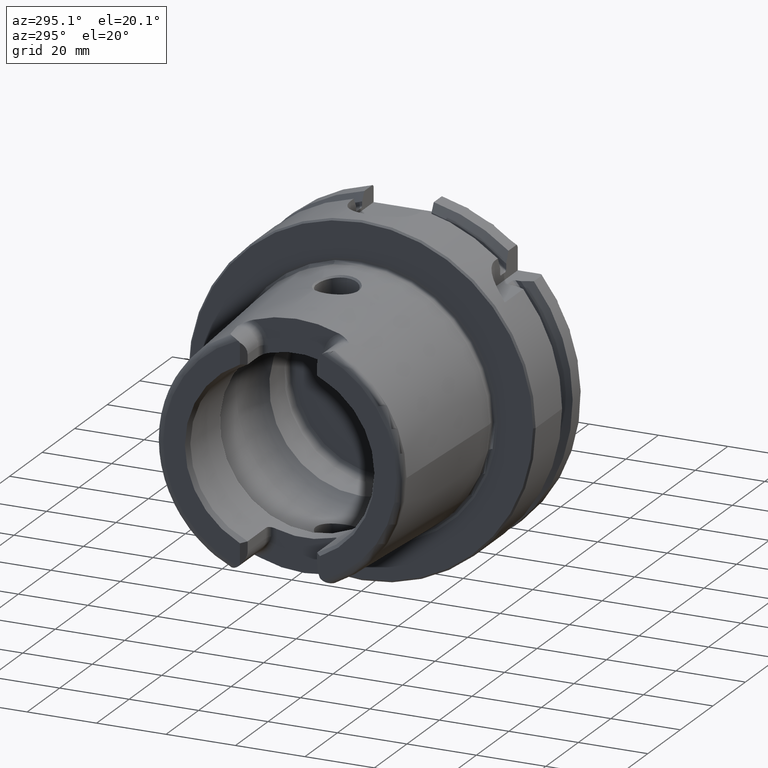
[diagram: clean part render]
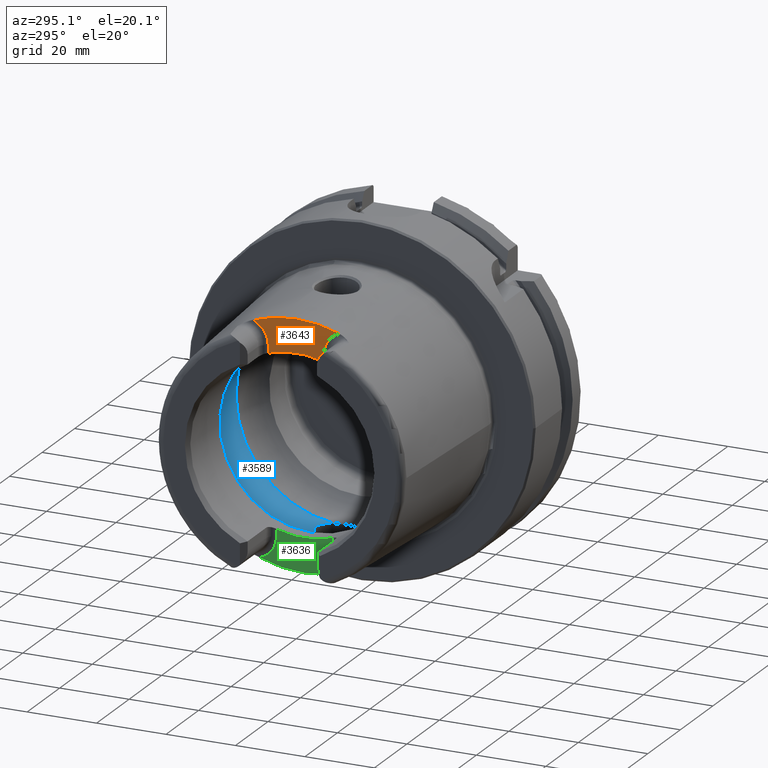
[diagram: same view with three faces highlighted in distinct colors, each labeled with its STEP entity id]
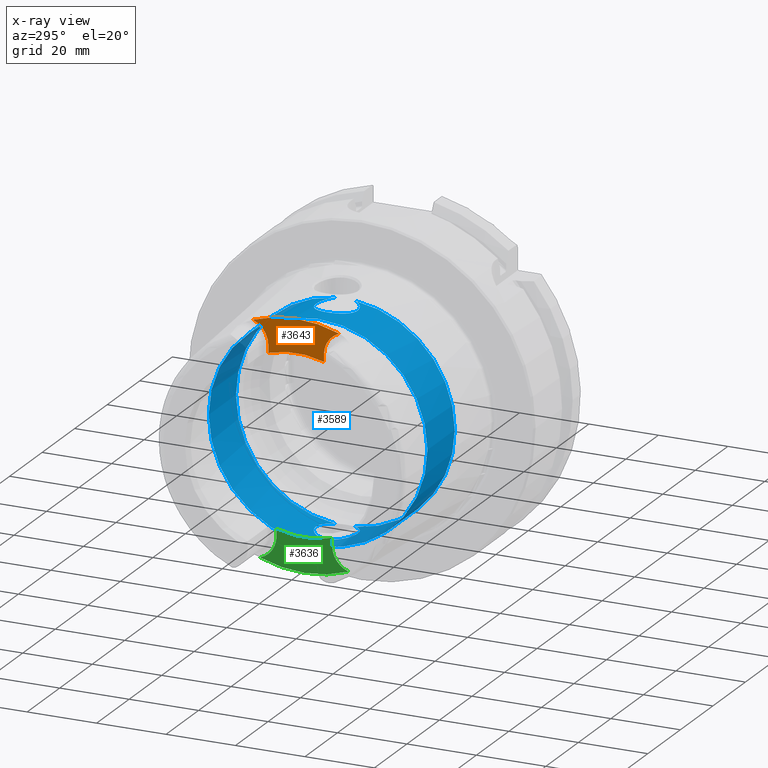
[diagram: x-ray of the same camera — body ghosted, the three highlighted faces saturated]
A machine part, auxiliary view with three faces highlighted in distinct colors.
The next image is the same camera in x-ray (body ghosted, the three faces saturated) — at least one of them is partly hidden behind the body in this view.
Their STEP definitions:

[orange] entity #3643 — the highlighted planar face has unit normal (-1, 0, 0).
#733=PLANE('',#4099);
#924=FACE_OUTER_BOUND('',#1118,.T.);
#1118=EDGE_LOOP('',(#3126,#3127,#3128,#3129,#3130,#3131));
#1318=LINE('',#6852,#1508);
#1319=LINE('',#6881,#1509);
#1508=VECTOR('',#4830,10.);
#1509=VECTOR('',#4843,10.);
#1639=CIRCLE('',#3986,36.003493987976);
#1682=CIRCLE('',#4072,6.88);
#1684=CIRCLE('',#4075,6.88);
#1696=CIRCLE('',#4100,26.5);
#1914=VERTEX_POINT('',#6030);
#1915=VERTEX_POINT('',#6047);
#2006=VERTEX_POINT('',#6849);
#2007=VERTEX_POINT('',#6851);
#2008=VERTEX_POINT('',#6866);
#2009=VERTEX_POINT('',#6870);
#2255=EDGE_CURVE('',#1914,#1915,#1639,.T.);
#2393=EDGE_CURVE('',#2006,#2007,#1318,.T.);
#2395=EDGE_CURVE('',#1915,#2006,#1682,.T.);
#2397=EDGE_CURVE('',#2008,#1914,#1684,.T.);
#2399=EDGE_CURVE('',#2009,#2008,#1319,.T.);
#2420=EDGE_CURVE('',#2007,#2009,#1696,.T.);
#3126=ORIENTED_EDGE('',*,*,#2395,.F.);
#3127=ORIENTED_EDGE('',*,*,#2255,.F.);
#3128=ORIENTED_EDGE('',*,*,#2397,.F.);
#3129=ORIENTED_EDGE('',*,*,#2399,.F.);
#3130=ORIENTED_EDGE('',*,*,#2420,.F.);
#3131=ORIENTED_EDGE('',*,*,#2393,.F.);
#3643=ADVANCED_FACE('',(#924),#733,.T.);
#3986=AXIS2_PLACEMENT_3D('',#6048,#4611,#4612);
#4072=AXIS2_PLACEMENT_3D('',#6864,#4833,#4834);
#4075=AXIS2_PLACEMENT_3D('',#6868,#4839,#4840);
#4099=AXIS2_PLACEMENT_3D('',#6939,#4895,#4896);
#4100=AXIS2_PLACEMENT_3D('',#6940,#4897,#4898);
#4611=DIRECTION('center_axis',(1.,0.,0.));
#4612=DIRECTION('ref_axis',(0.,1.,0.));
#4830=DIRECTION('',(0.,0.,-1.));
#4833=DIRECTION('center_axis',(-1.,0.,0.));
#4834=DIRECTION('ref_axis',(0.,0.564947834751706,0.82512662301574));
#4839=DIRECTION('center_axis',(-1.,0.,0.));
#4840=DIRECTION('ref_axis',(0.,-0.564947834751705,0.825126623015741));
#4843=DIRECTION('',(0.,0.,1.));
#4895=DIRECTION('center_axis',(-1.,0.,0.));
#4896=DIRECTION('ref_axis',(0.,0.,1.));
#4897=DIRECTION('center_axis',(-1.,0.,0.));
#4898=DIRECTION('ref_axis',(0.,1.,0.));
#6030=CARTESIAN_POINT('',(-40.,12.4227760464511,33.7923987701664));
#6047=CARTESIAN_POINT('',(-40.,-12.4227760464511,33.7923987701664));
#6048=CARTESIAN_POINT('Origin',(-40.,0.,0.));
#6849=CARTESIAN_POINT('',(-40.,-8.01,27.37));
#6851=CARTESIAN_POINT('',(-40.,-8.01,25.2604414054862));
#6852=CARTESIAN_POINT('',(-40.,-8.01,23.5));
#6864=CARTESIAN_POINT('Origin',(-40.,-14.89,27.37));
#6866=CARTESIAN_POINT('',(-40.,8.01,27.37));
#6868=CARTESIAN_POINT('Origin',(-40.,14.89,27.37));
#6870=CARTESIAN_POINT('',(-40.,8.01,25.2604414054862));
#6881=CARTESIAN_POINT('',(-40.,8.01,28.185));
#6939=CARTESIAN_POINT('Origin',(-40.,0.,29.));
#6940=CARTESIAN_POINT('Origin',(-40.,0.,0.));

[blue] entity #3589 — the highlighted cylindrical surface (bore or boss wall) has radius 31.5 mm, axis along (-1, 0, 0).
#592=B_SPLINE_CURVE_WITH_KNOTS('',3,(#6106,#6107,#6108,#6109,#6110,#6111,
#6112,#6113,#6114,#6115,#6116,#6117,#6118,#6119,#6120,#6121,#6122,#6123,
#6124,#6125,#6126,#6127,#6128,#6129,#6130,#6131,#6132,#6133,#6134,#6135,
#6136),.UNSPECIFIED.,.F.,.F.,(4,2,2,2,2,2,2,2,2,2,2,3,2,2,4),(-2.42966289251045,
-2.26609494287567,-2.03948128472637,-1.81286762657707,-1.58625396842777,
-1.35964031027847,-1.1330370617835,-0.906433813288535,-0.679830564793567,
-0.453227316298599,-0.226613658149299,0.,0.2266136581493,0.453227316298599,
0.616795265988555),.UNSPECIFIED.);
#597=B_SPLINE_CURVE_WITH_KNOTS('',3,(#6298,#6299,#6300,#6301,#6302,#6303,
#6304,#6305,#6306,#6307,#6308,#6309,#6310,#6311,#6312,#6313,#6314,#6315,
#6316,#6317,#6318,#6319,#6320,#6321,#6322,#6323,#6324,#6325,#6326,#6327,
#6328),.UNSPECIFIED.,.F.,.F.,(4,2,2,3,2,2,2,2,2,2,2,2,2,2,4),(-0.616795265933374,
-0.453227316298598,-0.226613658149299,0.,0.2266136581493,0.453227316298599,
0.679830564793567,0.906433813288535,1.1330370617835,1.35964031027847,1.58625396842777,
1.81286762657707,2.03948128472637,2.26609494287567,2.42966289256562),
 .UNSPECIFIED.);
#785=CYLINDRICAL_SURFACE('',#3990,31.5);
#870=FACE_OUTER_BOUND('',#1063,.T.);
#1063=EDGE_LOOP('',(#2828,#2829,#2830,#2831,#2832,#2833,#2834,#2835,#2836));
#1272=LINE('',#6344,#1462);
#1462=VECTOR('',#4626,31.5);
#1641=CIRCLE('',#3991,31.5);
#1642=CIRCLE('',#3992,31.5);
#1643=CIRCLE('',#3993,31.5);
#1644=CIRCLE('',#3994,31.5);
#1645=CIRCLE('',#3995,31.5);
#1918=VERTEX_POINT('',#6094);
#1919=VERTEX_POINT('',#6105);
#1922=VERTEX_POINT('',#6285);
#1924=VERTEX_POINT('',#6297);
#1925=VERTEX_POINT('',#6341);
#1926=VERTEX_POINT('',#6343);
#1927=VERTEX_POINT('',#6345);
#2261=EDGE_CURVE('',#1919,#1918,#592,.T.);
#2267=EDGE_CURVE('',#1924,#1922,#597,.T.);
#2270=EDGE_CURVE('',#1925,#1922,#1641,.T.);
#2271=EDGE_CURVE('',#1925,#1926,#1272,.T.);
#2272=EDGE_CURVE('',#1926,#1927,#1642,.T.);
#2273=EDGE_CURVE('',#1927,#1926,#1643,.T.);
#2274=EDGE_CURVE('',#1919,#1925,#1644,.T.);
#2275=EDGE_CURVE('',#1924,#1918,#1645,.T.);
#2828=ORIENTED_EDGE('',*,*,#2267,.T.);
#2829=ORIENTED_EDGE('',*,*,#2270,.F.);
#2830=ORIENTED_EDGE('',*,*,#2271,.T.);
#2831=ORIENTED_EDGE('',*,*,#2272,.T.);
#2832=ORIENTED_EDGE('',*,*,#2273,.T.);
#2833=ORIENTED_EDGE('',*,*,#2271,.F.);
#2834=ORIENTED_EDGE('',*,*,#2274,.F.);
#2835=ORIENTED_EDGE('',*,*,#2261,.T.);
#2836=ORIENTED_EDGE('',*,*,#2275,.F.);
#3589=ADVANCED_FACE('',(#870),#785,.F.);
#3990=AXIS2_PLACEMENT_3D('',#6340,#4622,#4623);
#3991=AXIS2_PLACEMENT_3D('',#6342,#4624,#4625);
#3992=AXIS2_PLACEMENT_3D('',#6346,#4627,#4628);
#3993=AXIS2_PLACEMENT_3D('',#6347,#4629,#4630);
#3994=AXIS2_PLACEMENT_3D('',#6348,#4631,#4632);
#3995=AXIS2_PLACEMENT_3D('',#6349,#4633,#4634);
#4622=DIRECTION('center_axis',(-1.,0.,0.));
#4623=DIRECTION('ref_axis',(0.,1.,0.));
#4624=DIRECTION('center_axis',(-1.,0.,0.));
#4625=DIRECTION('ref_axis',(0.,0.,1.));
#4626=DIRECTION('',(-1.,0.,0.));
#4627=DIRECTION('center_axis',(-1.,0.,0.));
#4628=DIRECTION('ref_axis',(0.,0.,1.));
#4629=DIRECTION('center_axis',(-1.,0.,0.));
#4630=DIRECTION('ref_axis',(0.,0.,1.));
#4631=DIRECTION('center_axis',(-1.,0.,0.));
#4632=DIRECTION('ref_axis',(0.,0.,1.));
#4633=DIRECTION('center_axis',(-1.,0.,0.));
#4634=DIRECTION('ref_axis',(0.,0.,1.));
#6094=CARTESIAN_POINT('',(-9.74679434480896,2.89893607109041,-31.3663222207471));
#6105=CARTESIAN_POINT('',(-9.74679434480896,-2.89893607109041,-31.3663222207471));
#6106=CARTESIAN_POINT('Ctrl Pts',(-9.74679434480898,-2.8989360710904,-31.3663222207471));
#6107=CARTESIAN_POINT('Ctrl Pts',(-10.0245557799842,-3.40227174537722,-31.3198029657389));
#6108=CARTESIAN_POINT('Ctrl Pts',(-10.3735944692601,-3.85887584349869,-31.2651415110221));
#6109=CARTESIAN_POINT('Ctrl Pts',(-11.289042660848,-4.77432403508655,-31.140708727458));
#6110=CARTESIAN_POINT('Ctrl Pts',(-11.9624834305428,-5.23577180141274,-31.0633803744766));
#6111=CARTESIAN_POINT('Ctrl Pts',(-13.4401908644727,-5.84865855662958,-30.9538382316308));
#6112=CARTESIAN_POINT('Ctrl Pts',(-14.2446211395023,-6.00000000000001,-30.9232921921325));
#6113=CARTESIAN_POINT('Ctrl Pts',(-15.7553788604977,-6.00000000000001,-30.9232921921325));
#6114=CARTESIAN_POINT('Ctrl Pts',(-16.5598091355273,-5.84865855662958,-30.9538382316308));
#6115=CARTESIAN_POINT('Ctrl Pts',(-18.0375165694572,-5.23577180141275,-31.0633803744766));
#6116=CARTESIAN_POINT('Ctrl Pts',(-18.710957339152,-4.77432403508655,-31.140708727458));
#6117=CARTESIAN_POINT('Ctrl Pts',(-19.7742996118461,-3.71098176239249,-31.2852440928545));
#6118=CARTESIAN_POINT('Ctrl Pts',(-20.2357665181958,-3.03753058698362,-31.3619556484746));
#6119=CARTESIAN_POINT('Ctrl Pts',(-20.8486671603361,-1.55978711209124,-31.4700797313679));
#6120=CARTESIAN_POINT('Ctrl Pts',(-21.,-0.755344161649895,-31.5));
#6121=CARTESIAN_POINT('Ctrl Pts',(-21.,0.755344161649892,-31.5));
#6122=CARTESIAN_POINT('Ctrl Pts',(-20.8486671603361,1.55978711209124,-31.4700797313679));
#6123=CARTESIAN_POINT('Ctrl Pts',(-20.2357665181958,3.03753058698362,-31.3619556484746));
#6124=CARTESIAN_POINT('Ctrl Pts',(-19.7742996118461,3.71098176239249,-31.2852440928545));
#6125=CARTESIAN_POINT('Ctrl Pts',(-18.710957339152,4.77432403508655,-31.140708727458));
#6126=CARTESIAN_POINT('Ctrl Pts',(-18.0375165694572,5.23577180141274,-31.0633803744766));
#6127=CARTESIAN_POINT('Ctrl Pts',(-16.5598091355273,5.84865855662958,-30.9538382316308));
#6128=CARTESIAN_POINT('Ctrl Pts',(-15.7553788604977,6.00000000000001,-30.9232921921325));
#6129=CARTESIAN_POINT('Ctrl Pts',(-15.,6.00000000000001,-30.9232921921325));
#6130=CARTESIAN_POINT('Ctrl Pts',(-14.2446211395023,6.00000000000001,-30.9232921921325));
#6131=CARTESIAN_POINT('Ctrl Pts',(-13.4401908644727,5.84865855662958,-30.9538382316308));
#6132=CARTESIAN_POINT('Ctrl Pts',(-11.9624834305428,5.23577180141274,-31.0633803744766));
#6133=CARTESIAN_POINT('Ctrl Pts',(-11.289042660848,4.77432403508655,-31.140708727458));
#6134=CARTESIAN_POINT('Ctrl Pts',(-10.3735944691306,3.85887584336922,-31.2651415110397));
#6135=CARTESIAN_POINT('Ctrl Pts',(-10.0245557801354,3.40227174565105,-31.3198029657135));
#6136=CARTESIAN_POINT('Ctrl Pts',(-9.74679434480898,2.8989360710904,-31.3663222207471));
#6285=CARTESIAN_POINT('',(-9.74679434480896,-2.89893607109042,31.3663222207471));
#6297=CARTESIAN_POINT('',(-9.74679434480896,2.89893607109042,31.3663222207471));
#6298=CARTESIAN_POINT('Ctrl Pts',(-9.74679434480897,2.89893607109041,31.3663222207471));
#6299=CARTESIAN_POINT('Ctrl Pts',(-10.0245557799842,3.40227174537723,31.3198029657389));
#6300=CARTESIAN_POINT('Ctrl Pts',(-10.3735944692601,3.85887584349869,31.2651415110221));
#6301=CARTESIAN_POINT('Ctrl Pts',(-11.289042660848,4.77432403508655,31.140708727458));
#6302=CARTESIAN_POINT('Ctrl Pts',(-11.9624834305428,5.23577180141274,31.0633803744766));
#6303=CARTESIAN_POINT('Ctrl Pts',(-13.4401908644727,5.84865855662958,30.9538382316308));
#6304=CARTESIAN_POINT('Ctrl Pts',(-14.2446211395023,6.00000000000001,30.9232921921325));
#6305=CARTESIAN_POINT('Ctrl Pts',(-15.,6.00000000000001,30.9232921921325));
#6306=CARTESIAN_POINT('Ctrl Pts',(-15.7553788604977,6.00000000000001,30.9232921921325));
#6307=CARTESIAN_POINT('Ctrl Pts',(-16.5598091355273,5.84865855662958,30.9538382316308));
#6308=CARTESIAN_POINT('Ctrl Pts',(-18.0375165694572,5.23577180141274,31.0633803744766));
#6309=CARTESIAN_POINT('Ctrl Pts',(-18.710957339152,4.77432403508655,31.140708727458));
#6310=CARTESIAN_POINT('Ctrl Pts',(-19.7742996118461,3.71098176239249,31.2852440928545));
#6311=CARTESIAN_POINT('Ctrl Pts',(-20.2357665181958,3.03753058698362,31.3619556484746));
#6312=CARTESIAN_POINT('Ctrl Pts',(-20.8486671603361,1.55978711209124,31.4700797313679));
#6313=CARTESIAN_POINT('Ctrl Pts',(-21.,0.755344161649892,31.5));
#6314=CARTESIAN_POINT('Ctrl Pts',(-21.,-0.755344161649894,31.5));
#6315=CARTESIAN_POINT('Ctrl Pts',(-20.8486671603361,-1.55978711209124,31.4700797313679));
#6316=CARTESIAN_POINT('Ctrl Pts',(-20.2357665181958,-3.03753058698362,31.3619556484746));
#6317=CARTESIAN_POINT('Ctrl Pts',(-19.7742996118461,-3.71098176239249,31.2852440928545));
#6318=CARTESIAN_POINT('Ctrl Pts',(-18.710957339152,-4.77432403508655,31.140708727458));
#6319=CARTESIAN_POINT('Ctrl Pts',(-18.0375165694572,-5.23577180141274,31.0633803744766));
#6320=CARTESIAN_POINT('Ctrl Pts',(-16.5598091355273,-5.84865855662958,30.9538382316308));
#6321=CARTESIAN_POINT('Ctrl Pts',(-15.7553788604977,-6.00000000000001,30.9232921921325));
#6322=CARTESIAN_POINT('Ctrl Pts',(-14.2446211395023,-6.00000000000001,30.9232921921325));
#6323=CARTESIAN_POINT('Ctrl Pts',(-13.4401908644727,-5.84865855662958,30.9538382316308));
#6324=CARTESIAN_POINT('Ctrl Pts',(-11.9624834305428,-5.23577180141274,31.0633803744766));
#6325=CARTESIAN_POINT('Ctrl Pts',(-11.289042660848,-4.77432403508655,31.140708727458));
#6326=CARTESIAN_POINT('Ctrl Pts',(-10.3735944691306,-3.85887584336922,31.2651415110397));
#6327=CARTESIAN_POINT('Ctrl Pts',(-10.0245557801353,-3.40227174565106,31.3198029657135));
#6328=CARTESIAN_POINT('Ctrl Pts',(-9.74679434480897,-2.89893607109041,31.3663222207471));
#6340=CARTESIAN_POINT('Origin',(-18.1430342013226,0.,0.));
#6341=CARTESIAN_POINT('',(-9.74679434480896,-31.5,3.85763741731416E-15));
#6342=CARTESIAN_POINT('Origin',(-9.74679434480896,0.,0.));
#6343=CARTESIAN_POINT('',(-26.5392740578363,-31.5,3.85763741731416E-15));
#6344=CARTESIAN_POINT('',(-18.1430342013226,-31.5,3.85763741731416E-15));
#6345=CARTESIAN_POINT('',(-26.5392740578363,-3.85763741731416E-15,-31.5));
#6346=CARTESIAN_POINT('Origin',(-26.5392740578363,0.,0.));
#6347=CARTESIAN_POINT('Origin',(-26.5392740578363,0.,0.));
#6348=CARTESIAN_POINT('Origin',(-9.74679434480896,0.,0.));
#6349=CARTESIAN_POINT('Origin',(-9.74679434480896,0.,0.));

[green] entity #3636 — the highlighted planar face has unit normal (-1, 0, 0).
#730=PLANE('',#4087);
#917=FACE_OUTER_BOUND('',#1111,.T.);
#1111=EDGE_LOOP('',(#3098,#3099,#3100,#3101,#3102,#3103));
#1320=LINE('',#6903,#1510);
#1323=LINE('',#6915,#1513);
#1510=VECTOR('',#4856,10.);
#1513=VECTOR('',#4871,10.);
#1637=CIRCLE('',#3984,36.25399498998);
#1688=CIRCLE('',#4081,6.88);
#1691=CIRCLE('',#4088,26.5);
#1692=CIRCLE('',#4089,6.88);
#1910=VERTEX_POINT('',#5979);
#1911=VERTEX_POINT('',#5990);
#2012=VERTEX_POINT('',#6887);
#2014=VERTEX_POINT('',#6892);
#2016=VERTEX_POINT('',#6912);
#2017=VERTEX_POINT('',#6914);
#2249=EDGE_CURVE('',#1910,#1911,#1637,.T.);
#2403=EDGE_CURVE('',#2012,#1910,#1688,.T.);
#2405=EDGE_CURVE('',#2014,#2012,#1320,.T.);
#2410=EDGE_CURVE('',#2016,#2014,#1691,.T.);
#2411=EDGE_CURVE('',#2017,#2016,#1323,.T.);
#2412=EDGE_CURVE('',#1911,#2017,#1692,.T.);
#3098=ORIENTED_EDGE('',*,*,#2403,.F.);
#3099=ORIENTED_EDGE('',*,*,#2405,.F.);
#3100=ORIENTED_EDGE('',*,*,#2410,.F.);
#3101=ORIENTED_EDGE('',*,*,#2411,.F.);
#3102=ORIENTED_EDGE('',*,*,#2412,.F.);
#3103=ORIENTED_EDGE('',*,*,#2249,.F.);
#3636=ADVANCED_FACE('',(#917),#730,.T.);
#3984=AXIS2_PLACEMENT_3D('',#5991,#4607,#4608);
#4081=AXIS2_PLACEMENT_3D('',#6889,#4852,#4853);
#4087=AXIS2_PLACEMENT_3D('',#6911,#4867,#4868);
#4088=AXIS2_PLACEMENT_3D('',#6913,#4869,#4870);
#4089=AXIS2_PLACEMENT_3D('',#6916,#4872,#4873);
#4607=DIRECTION('center_axis',(1.,0.,0.));
#4608=DIRECTION('ref_axis',(0.,1.,0.));
#4852=DIRECTION('center_axis',(-1.,0.,0.));
#4853=DIRECTION('ref_axis',(0.,0.510937901715381,-0.8596176246394));
#4856=DIRECTION('',(0.,0.,-1.));
#4867=DIRECTION('center_axis',(-1.,0.,0.));
#4868=DIRECTION('ref_axis',(0.,0.,1.));
#4869=DIRECTION('center_axis',(-1.,0.,0.));
#4870=DIRECTION('ref_axis',(0.,1.,0.));
#4871=DIRECTION('',(0.,0.,1.));
#4872=DIRECTION('center_axis',(-1.,0.,0.));
#4873=DIRECTION('ref_axis',(0.,-0.510937901715381,-0.8596176246394));
#5979=CARTESIAN_POINT('',(-35.,-12.7918651267415,-33.9222690767105));
#5990=CARTESIAN_POINT('',(-35.,12.7918651267415,-33.9222690767105));
#5991=CARTESIAN_POINT('Origin',(-35.,0.,0.));
#6887=CARTESIAN_POINT('',(-35.,-8.01,-27.37));
#6889=CARTESIAN_POINT('Origin',(-35.,-14.89,-27.37));
#6892=CARTESIAN_POINT('',(-35.,-8.01,-25.2604414054862));
#6903=CARTESIAN_POINT('',(-35.,-8.01,-28.685));
#6911=CARTESIAN_POINT('Origin',(-35.,8.88178419700125E-15,-30.));
#6912=CARTESIAN_POINT('',(-35.,8.01,-25.2604414054862));
#6913=CARTESIAN_POINT('Origin',(-35.,0.,0.));
#6914=CARTESIAN_POINT('',(-35.,8.01,-27.37));
#6915=CARTESIAN_POINT('',(-35.,8.01,-25.));
#6916=CARTESIAN_POINT('Origin',(-35.,14.89,-27.37));